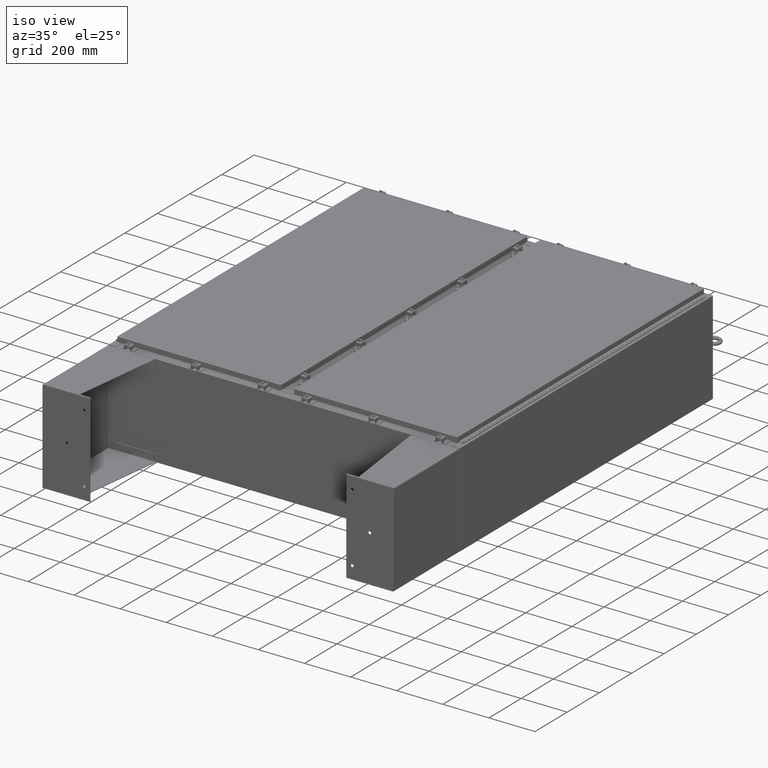
[diagram: clean part render]
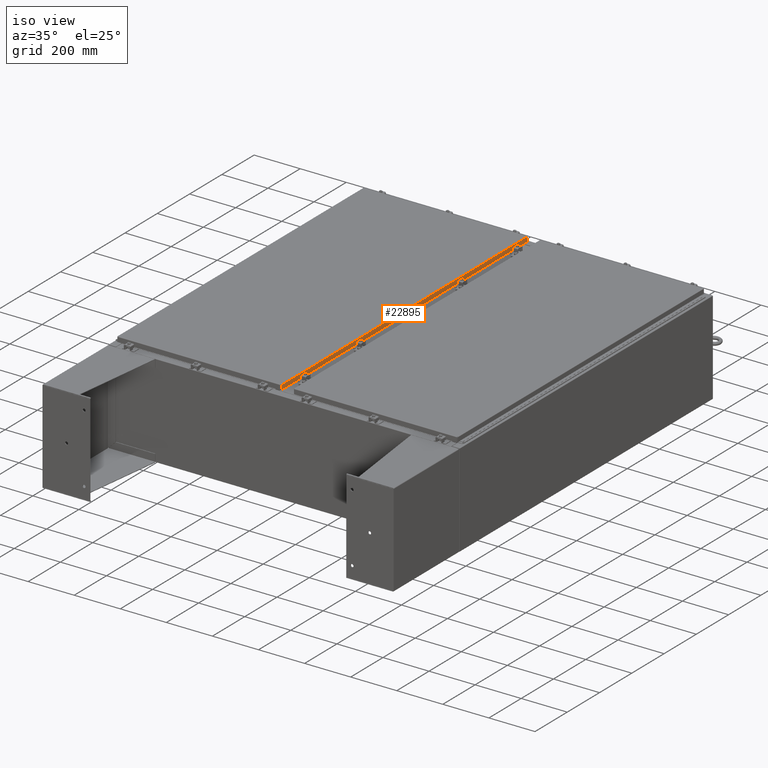
[diagram: same view with one face highlighted and labeled with its STEP entity id]
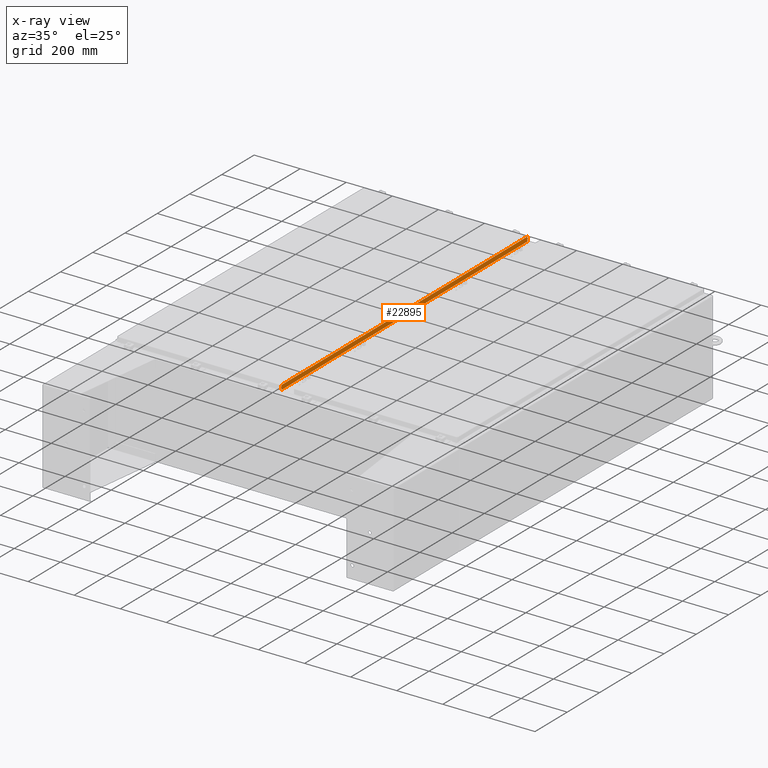
[diagram: x-ray of the same camera — body ghosted, the highlighted face saturated]
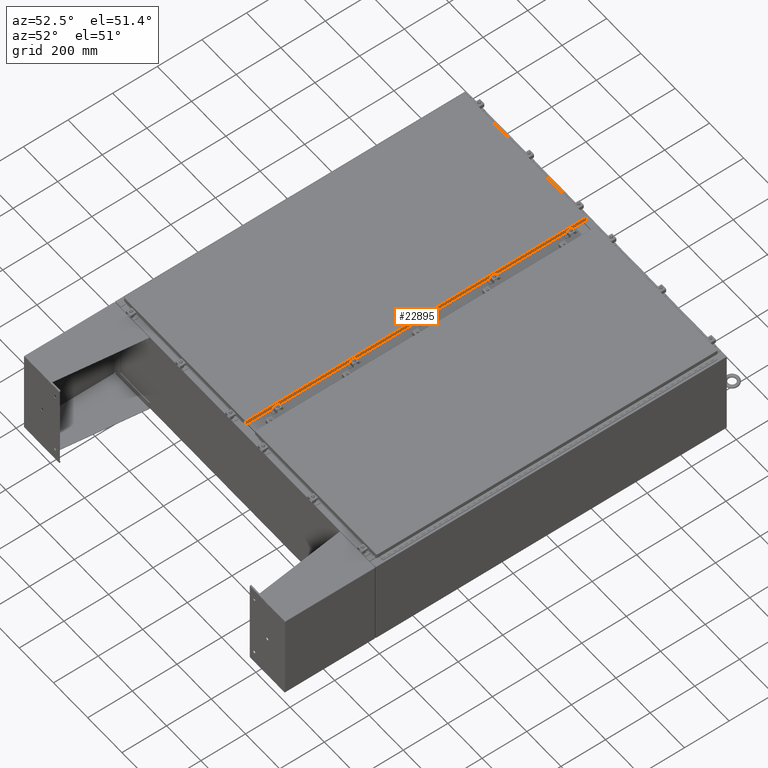
[diagram: same view with one face highlighted and labeled with its STEP entity id]
A machine part, iso view. The second image highlights one B-rep face of the part: STEP entity #22895.
The next image is the same camera in x-ray: the body ghosted, the highlighted face saturated — about 0% of this face is hidden behind the body in this view.
A second angle (auxiliary view) of the same face is appended — the face is thin or edge-on in the first view.
In plain terms, the highlighted planar face has unit normal (1, 0, 0).
Its self-contained STEP definition (entity closure, byte-faithful):
#255 = VERTEX_POINT ( 'NONE', #42357 ) ;
#3893 = ORIENTED_EDGE ( 'NONE', *, *, #7788, .F. ) ;
#3950 = VERTEX_POINT ( 'NONE', #17546 ) ;
#4929 = DIRECTION ( 'NONE',  ( -2.818880942772360100E-015, -6.982962677686267500E-015, 1.000000000000000000 ) ) ;
#5366 = DIRECTION ( 'NONE',  ( -2.818880942772360100E-015, -6.982962677686267500E-015, 1.000000000000000000 ) ) ;
#6068 = VECTOR ( 'NONE', #4929, 39.37007874015748100 ) ;
#7788 = EDGE_CURVE ( 'NONE', #255, #16272, #11979, .T. ) ;
#7852 = ORIENTED_EDGE ( 'NONE', *, *, #32608, .F. ) ;
#7982 = DIRECTION ( 'NONE',  ( 0.0000000000000000000, -1.000000000000000000, 0.0000000000000000000 ) ) ;
#8279 = DIRECTION ( 'NONE',  ( 0.0000000000000000000, -1.000000000000000000, 0.0000000000000000000 ) ) ;
#8407 = CARTESIAN_POINT ( 'NONE',  ( 14.00550000000000100, -30.01705786437626200, -0.8499999999999996400 ) ) ;
#8933 = AXIS2_PLACEMENT_3D ( 'NONE', #32111, #69668, #37552 ) ;
#10242 = VECTOR ( 'NONE', #8279, 39.37007874015748100 ) ;
#11979 = LINE ( 'NONE', #13713, #10242 ) ;
#13647 = CARTESIAN_POINT ( 'NONE',  ( 14.00550000000000000, 0.0000000000000000000, -0.08770000000000007000 ) ) ;
#13713 = CARTESIAN_POINT ( 'NONE',  ( 14.00550000000000100, -30.10589999999999500, -0.8499999999999996400 ) ) ;
#15134 = VERTEX_POINT ( 'NONE', #54196 ) ;
#15883 = CARTESIAN_POINT ( 'NONE',  ( 14.00549999999999400, 29.26705786437627000, -0.8500000000000048600 ) ) ;
#15994 = CARTESIAN_POINT ( 'NONE',  ( 14.00550000000000000, -30.01705786437626600, -0.07469999999999978000 ) ) ;
#16272 = VERTEX_POINT ( 'NONE', #8407 ) ;
#17546 = CARTESIAN_POINT ( 'NONE',  ( 14.00549999999999400, 29.26705786437626200, -0.8500000000000048600 ) ) ;
#18711 = LINE ( 'NONE', #13647, #45728 ) ;
#20795 = VERTEX_POINT ( 'NONE', #30506 ) ;
#22895 = ADVANCED_FACE ( 'NONE', ( #49732 ), #53505, .T. ) ;
#24680 = LINE ( 'NONE', #15883, #67565 ) ;
#25491 = EDGE_CURVE ( 'NONE', #3950, #255, #24680, .T. ) ;
#30160 = EDGE_CURVE ( 'NONE', #16272, #20795, #49473, .T. ) ;
#30506 = CARTESIAN_POINT ( 'NONE',  ( 14.00550000000000000, -30.01705786437626600, -0.08770000000000007000 ) ) ;
#32111 = CARTESIAN_POINT ( 'NONE',  ( 14.00550000000000000, 0.0000000000000000000, 3.974065070000986600E-014 ) ) ;
#32608 = EDGE_CURVE ( 'NONE', #42073, #3950, #55410, .T. ) ;
#33324 = ORIENTED_EDGE ( 'NONE', *, *, #63067, .T. ) ;
#35130 = VECTOR ( 'NONE', #5366, 39.37007874015748100 ) ;
#37336 = DIRECTION ( 'NONE',  ( 0.0000000000000000000, -1.000000000000000000, 0.0000000000000000000 ) ) ;
#37552 = DIRECTION ( 'NONE',  ( 2.818880942772360100E-015, 0.0000000000000000000, -1.000000000000000000 ) ) ;
#40269 = CARTESIAN_POINT ( 'NONE',  ( 14.00550000000000100, -30.10589999999999500, -0.8499999999999996400 ) ) ;
#42073 = VERTEX_POINT ( 'NONE', #47199 ) ;
#42357 = CARTESIAN_POINT ( 'NONE',  ( 14.00549999999999400, -29.26705786437625200, -0.8500000000000048600 ) ) ;
#45728 = VECTOR ( 'NONE', #56676, 39.37007874015748100 ) ;
#47199 = CARTESIAN_POINT ( 'NONE',  ( 14.00550000000000100, 30.01705786437628000, -0.8499999999999996400 ) ) ;
#48079 = CARTESIAN_POINT ( 'NONE',  ( 14.00550000000000000, 30.01705786437627000, 2.493486454608984100E-013 ) ) ;
#48802 = ORIENTED_EDGE ( 'NONE', *, *, #67402, .T. ) ;
#49253 = ORIENTED_EDGE ( 'NONE', *, *, #30160, .F. ) ;
#49473 = LINE ( 'NONE', #15994, #35130 ) ;
#49732 = FACE_OUTER_BOUND ( 'NONE', #60144, .T. ) ;
#53505 = PLANE ( 'NONE',  #8933 ) ;
#54196 = CARTESIAN_POINT ( 'NONE',  ( 14.00550000000000000, 30.01705786437627000, -0.08770000000000007000 ) ) ;
#55410 = LINE ( 'NONE', #40269, #69654 ) ;
#56676 = DIRECTION ( 'NONE',  ( 0.0000000000000000000, -1.000000000000000000, 0.0000000000000000000 ) ) ;
#60144 = EDGE_LOOP ( 'NONE', ( #49253, #3893, #65236, #7852, #33324, #48802 ) ) ;
#63067 = EDGE_CURVE ( 'NONE', #42073, #15134, #63319, .T. ) ;
#63319 = LINE ( 'NONE', #48079, #6068 ) ;
#65236 = ORIENTED_EDGE ( 'NONE', *, *, #25491, .F. ) ;
#67402 = EDGE_CURVE ( 'NONE', #15134, #20795, #18711, .T. ) ;
#67565 = VECTOR ( 'NONE', #37336, 39.37007874015748100 ) ;
#69654 = VECTOR ( 'NONE', #7982, 39.37007874015748100 ) ;
#69668 = DIRECTION ( 'NONE',  ( 1.000000000000000000, 0.0000000000000000000, 2.818880942772360100E-015 ) ) ;